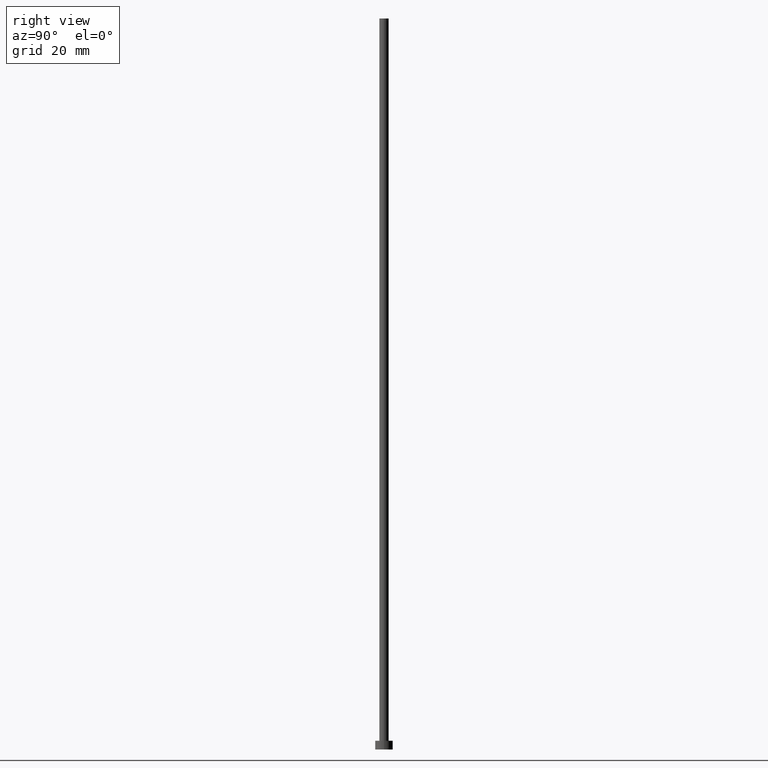
[diagram: clean part render]
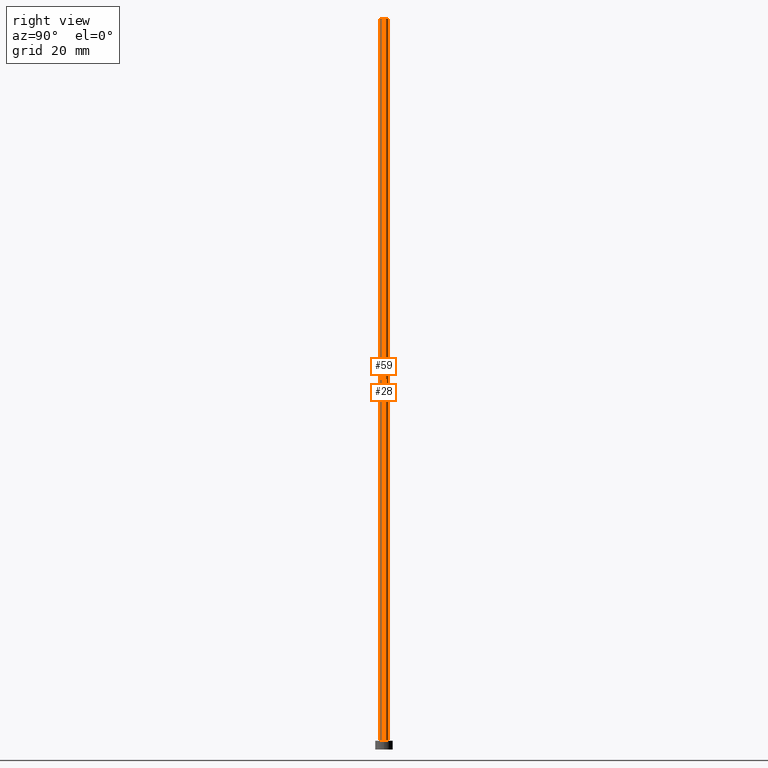
[diagram: same view with one multi-face feature highlighted, each face labeled with its STEP entity id]
A machine part, right view. The highlighted faces form ONE feature: a constant-radius fillet chain: 2 tangent blend faces with common blend radius 1.6 mm. The faces share edges in the B-rep.
Their STEP definitions:
[1] entity #28 (Cylinder):
#2 = VECTOR ( 'NONE', #221, 1000.000000000000000 ) ;
#3 = CARTESIAN_POINT ( 'NONE',  ( -1.600000000000000089, 0.000000000000000000, 250.0000000000000000 ) ) ;
#9 = CIRCLE ( 'NONE', #46, 1.600000000000000089 ) ;
#13 = AXIS2_PLACEMENT_3D ( 'NONE', #174, #21, #84 ) ;
#21 = DIRECTION ( 'NONE',  ( -0.000000000000000000, -0.000000000000000000, -1.000000000000000000 ) ) ;
#25 = DIRECTION ( 'NONE',  ( 1.000000000000000000, 0.000000000000000000, 0.000000000000000000 ) ) ;
#28 = ADVANCED_FACE ( 'NONE', ( #215 ), #125, .T. ) ;
#30 = DIRECTION ( 'NONE',  ( 1.000000000000000000, 0.000000000000000000, 0.000000000000000000 ) ) ;
#35 = EDGE_CURVE ( 'NONE', #140, #124, #105, .T. ) ;
#46 = AXIS2_PLACEMENT_3D ( 'NONE', #94, #204, #25 ) ;
#70 = CARTESIAN_POINT ( 'NONE',  ( 1.600000000000000089, 1.959434878635765230E-16, 250.0000000000000000 ) ) ;
#73 = CARTESIAN_POINT ( 'NONE',  ( -1.600000000000000089, 0.000000000000000000, 250.0000000000000000 ) ) ;
#81 = AXIS2_PLACEMENT_3D ( 'NONE', #166, #109, #30 ) ;
#84 = DIRECTION ( 'NONE',  ( -1.000000000000000000, 0.000000000000000000, 0.000000000000000000 ) ) ;
#94 = CARTESIAN_POINT ( 'NONE',  ( 0.000000000000000000, 0.000000000000000000, 3.000000000000000000 ) ) ;
#105 = LINE ( 'NONE', #237, #2 ) ;
#109 = DIRECTION ( 'NONE',  ( 0.000000000000000000, 0.000000000000000000, 1.000000000000000000 ) ) ;
#110 = VECTOR ( 'NONE', #129, 1000.000000000000000 ) ;
#124 = VERTEX_POINT ( 'NONE', #206 ) ;
#125 = CYLINDRICAL_SURFACE ( 'NONE', #13, 1.600000000000000089 ) ;
#126 = ORIENTED_EDGE ( 'NONE', *, *, #35, .T. ) ;
#129 = DIRECTION ( 'NONE',  ( -0.000000000000000000, -0.000000000000000000, -1.000000000000000000 ) ) ;
#140 = VERTEX_POINT ( 'NONE', #70 ) ;
#142 = EDGE_LOOP ( 'NONE', ( #194, #126, #218, #254 ) ) ;
#149 = CARTESIAN_POINT ( 'NONE',  ( -1.600000000000000089, 0.000000000000000000, 3.000000000000000000 ) ) ;
#150 = EDGE_CURVE ( 'NONE', #196, #157, #228, .T. ) ;
#157 = VERTEX_POINT ( 'NONE', #149 ) ;
#165 = EDGE_CURVE ( 'NONE', #124, #157, #9, .T. ) ;
#166 = CARTESIAN_POINT ( 'NONE',  ( 0.000000000000000000, 0.000000000000000000, 250.0000000000000000 ) ) ;
#174 = CARTESIAN_POINT ( 'NONE',  ( 0.000000000000000000, 0.000000000000000000, 250.0000000000000000 ) ) ;
#188 = CIRCLE ( 'NONE', #81, 1.600000000000000089 ) ;
#194 = ORIENTED_EDGE ( 'NONE', *, *, #217, .F. ) ;
#196 = VERTEX_POINT ( 'NONE', #3 ) ;
#204 = DIRECTION ( 'NONE',  ( 0.000000000000000000, 0.000000000000000000, 1.000000000000000000 ) ) ;
#206 = CARTESIAN_POINT ( 'NONE',  ( 1.600000000000000089, 1.959434878635765230E-16, 3.000000000000000000 ) ) ;
#215 = FACE_OUTER_BOUND ( 'NONE', #142, .T. ) ;
#217 = EDGE_CURVE ( 'NONE', #140, #196, #188, .T. ) ;
#218 = ORIENTED_EDGE ( 'NONE', *, *, #165, .T. ) ;
#221 = DIRECTION ( 'NONE',  ( -0.000000000000000000, -0.000000000000000000, -1.000000000000000000 ) ) ;
#228 = LINE ( 'NONE', #73, #110 ) ;
#237 = CARTESIAN_POINT ( 'NONE',  ( 1.600000000000000089, 1.959434878635765230E-16, 250.0000000000000000 ) ) ;
#254 = ORIENTED_EDGE ( 'NONE', *, *, #150, .F. ) ;
[2] entity #59 (Cylinder):
#2 = VECTOR ( 'NONE', #221, 1000.000000000000000 ) ;
#3 = CARTESIAN_POINT ( 'NONE',  ( -1.600000000000000089, 0.000000000000000000, 250.0000000000000000 ) ) ;
#8 = DIRECTION ( 'NONE',  ( 1.000000000000000000, 0.000000000000000000, 0.000000000000000000 ) ) ;
#18 = EDGE_CURVE ( 'NONE', #157, #124, #79, .T. ) ;
#20 = CARTESIAN_POINT ( 'NONE',  ( 0.000000000000000000, 0.000000000000000000, 250.0000000000000000 ) ) ;
#23 = CARTESIAN_POINT ( 'NONE',  ( 0.000000000000000000, 0.000000000000000000, 3.000000000000000000 ) ) ;
#24 = CYLINDRICAL_SURFACE ( 'NONE', #108, 1.600000000000000089 ) ;
#35 = EDGE_CURVE ( 'NONE', #140, #124, #105, .T. ) ;
#38 = ORIENTED_EDGE ( 'NONE', *, *, #35, .F. ) ;
#59 = ADVANCED_FACE ( 'NONE', ( #216 ), #24, .T. ) ;
#70 = CARTESIAN_POINT ( 'NONE',  ( 1.600000000000000089, 1.959434878635765230E-16, 250.0000000000000000 ) ) ;
#73 = CARTESIAN_POINT ( 'NONE',  ( -1.600000000000000089, 0.000000000000000000, 250.0000000000000000 ) ) ;
#79 = CIRCLE ( 'NONE', #113, 1.600000000000000089 ) ;
#85 = DIRECTION ( 'NONE',  ( -1.000000000000000000, 0.000000000000000000, 0.000000000000000000 ) ) ;
#93 = EDGE_CURVE ( 'NONE', #196, #140, #118, .T. ) ;
#103 = DIRECTION ( 'NONE',  ( 1.000000000000000000, 0.000000000000000000, 0.000000000000000000 ) ) ;
#104 = DIRECTION ( 'NONE',  ( -0.000000000000000000, -0.000000000000000000, -1.000000000000000000 ) ) ;
#105 = LINE ( 'NONE', #237, #2 ) ;
#108 = AXIS2_PLACEMENT_3D ( 'NONE', #20, #104, #85 ) ;
#110 = VECTOR ( 'NONE', #129, 1000.000000000000000 ) ;
#113 = AXIS2_PLACEMENT_3D ( 'NONE', #23, #252, #103 ) ;
#118 = CIRCLE ( 'NONE', #145, 1.600000000000000089 ) ;
#123 = EDGE_LOOP ( 'NONE', ( #38, #175, #250, #127 ) ) ;
#124 = VERTEX_POINT ( 'NONE', #206 ) ;
#127 = ORIENTED_EDGE ( 'NONE', *, *, #18, .T. ) ;
#129 = DIRECTION ( 'NONE',  ( -0.000000000000000000, -0.000000000000000000, -1.000000000000000000 ) ) ;
#140 = VERTEX_POINT ( 'NONE', #70 ) ;
#145 = AXIS2_PLACEMENT_3D ( 'NONE', #242, #222, #8 ) ;
#149 = CARTESIAN_POINT ( 'NONE',  ( -1.600000000000000089, 0.000000000000000000, 3.000000000000000000 ) ) ;
#150 = EDGE_CURVE ( 'NONE', #196, #157, #228, .T. ) ;
#157 = VERTEX_POINT ( 'NONE', #149 ) ;
#175 = ORIENTED_EDGE ( 'NONE', *, *, #93, .F. ) ;
#196 = VERTEX_POINT ( 'NONE', #3 ) ;
#206 = CARTESIAN_POINT ( 'NONE',  ( 1.600000000000000089, 1.959434878635765230E-16, 3.000000000000000000 ) ) ;
#216 = FACE_OUTER_BOUND ( 'NONE', #123, .T. ) ;
#221 = DIRECTION ( 'NONE',  ( -0.000000000000000000, -0.000000000000000000, -1.000000000000000000 ) ) ;
#222 = DIRECTION ( 'NONE',  ( 0.000000000000000000, 0.000000000000000000, 1.000000000000000000 ) ) ;
#228 = LINE ( 'NONE', #73, #110 ) ;
#237 = CARTESIAN_POINT ( 'NONE',  ( 1.600000000000000089, 1.959434878635765230E-16, 250.0000000000000000 ) ) ;
#242 = CARTESIAN_POINT ( 'NONE',  ( 0.000000000000000000, 0.000000000000000000, 250.0000000000000000 ) ) ;
#250 = ORIENTED_EDGE ( 'NONE', *, *, #150, .T. ) ;
#252 = DIRECTION ( 'NONE',  ( 0.000000000000000000, 0.000000000000000000, 1.000000000000000000 ) ) ;